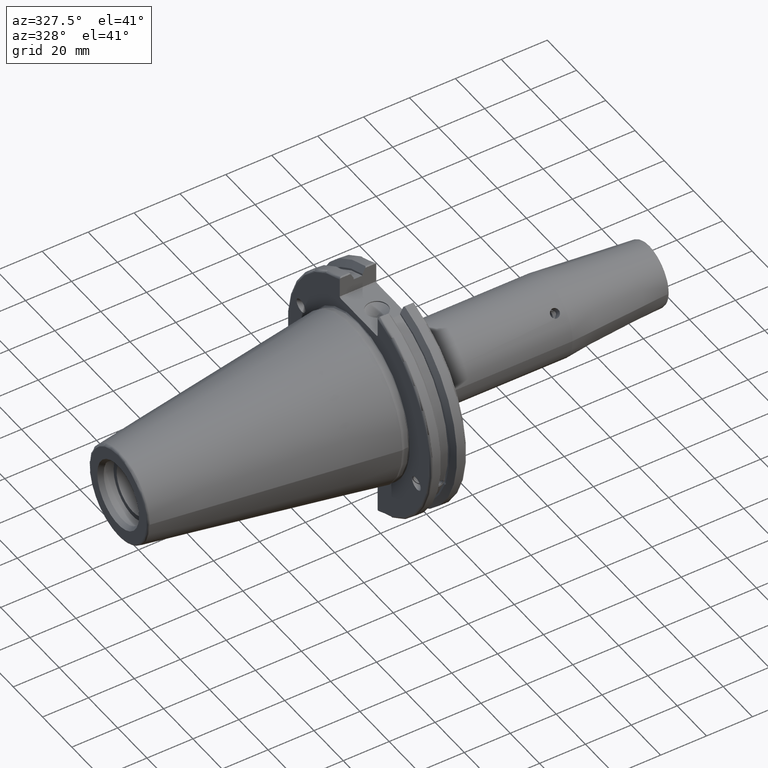
[diagram: clean part render]
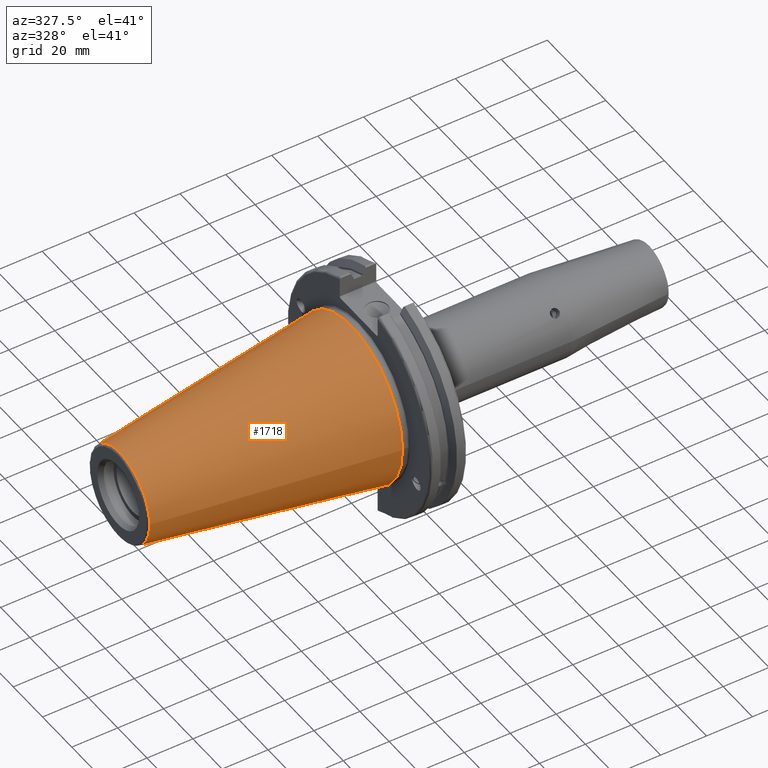
[diagram: same view with one face highlighted and labeled with its STEP entity id]
A machine part, auxiliary view. The second image highlights one B-rep face of the part: STEP entity #1718.
In plain terms, the highlighted conical surface has half-angle 8.297 deg.
Its self-contained STEP definition (entity closure, byte-faithful):
#112=CONICAL_SURFACE('',#1909,27.5166666666666,0.14481249823894);
#182=CIRCLE('',#1903,20.233121911427);
#183=CIRCLE('',#1904,20.233121911427);
#187=CIRCLE('',#1910,34.925);
#265=FACE_OUTER_BOUND('',#383,.T.);
#383=EDGE_LOOP('',(#1487,#1488,#1489,#1490,#1491));
#550=LINE('',#3542,#651);
#651=VECTOR('',#2315,27.5166666666666);
#833=VERTEX_POINT('',#3529);
#834=VERTEX_POINT('',#3530);
#837=VERTEX_POINT('',#3540);
#1066=EDGE_CURVE('',#833,#834,#182,.T.);
#1067=EDGE_CURVE('',#834,#833,#183,.T.);
#1071=EDGE_CURVE('',#837,#837,#187,.T.);
#1072=EDGE_CURVE('',#837,#834,#550,.T.);
#1487=ORIENTED_EDGE('',*,*,#1071,.F.);
#1488=ORIENTED_EDGE('',*,*,#1072,.T.);
#1489=ORIENTED_EDGE('',*,*,#1066,.F.);
#1490=ORIENTED_EDGE('',*,*,#1067,.F.);
#1491=ORIENTED_EDGE('',*,*,#1072,.F.);
#1718=ADVANCED_FACE('',(#265),#112,.T.);
#1903=AXIS2_PLACEMENT_3D('',#3531,#2299,#2300);
#1904=AXIS2_PLACEMENT_3D('',#3532,#2301,#2302);
#1909=AXIS2_PLACEMENT_3D('',#3539,#2311,#2312);
#1910=AXIS2_PLACEMENT_3D('',#3541,#2313,#2314);
#2299=DIRECTION('center_axis',(-1.,0.,0.));
#2300=DIRECTION('ref_axis',(0.,-1.,3.06161699786838E-17));
#2301=DIRECTION('center_axis',(-1.,0.,0.));
#2302=DIRECTION('ref_axis',(0.,-1.,3.06161699786838E-17));
#2311=DIRECTION('center_axis',(1.,0.,0.));
#2312=DIRECTION('ref_axis',(0.,1.,0.));
#2313=DIRECTION('center_axis',(1.,0.,0.));
#2314=DIRECTION('ref_axis',(0.,0.,-1.));
#2315=DIRECTION('',(-0.989532981063281,0.144306893071729,1.76724974695192E-17));
#3529=CARTESIAN_POINT('',(-100.744306893072,-2.47784279855872E-15,20.233121911427));
#3530=CARTESIAN_POINT('',(-100.744306893072,-20.233121911427,-2.47784279855872E-15));
#3531=CARTESIAN_POINT('Origin',(-100.744306893072,0.,-3.09730349819841E-15));
#3532=CARTESIAN_POINT('Origin',(-100.744306893072,0.,-3.09730349819841E-15));
#3539=CARTESIAN_POINT('Origin',(-50.8,0.,0.));
#3540=CARTESIAN_POINT('',(-8.88178419700125E-15,-34.925,-4.27707894602213E-15));
#3541=CARTESIAN_POINT('Origin',(0.,0.,0.));
#3542=CARTESIAN_POINT('',(-50.8,-27.5166666666666,-3.3698197756538E-15));